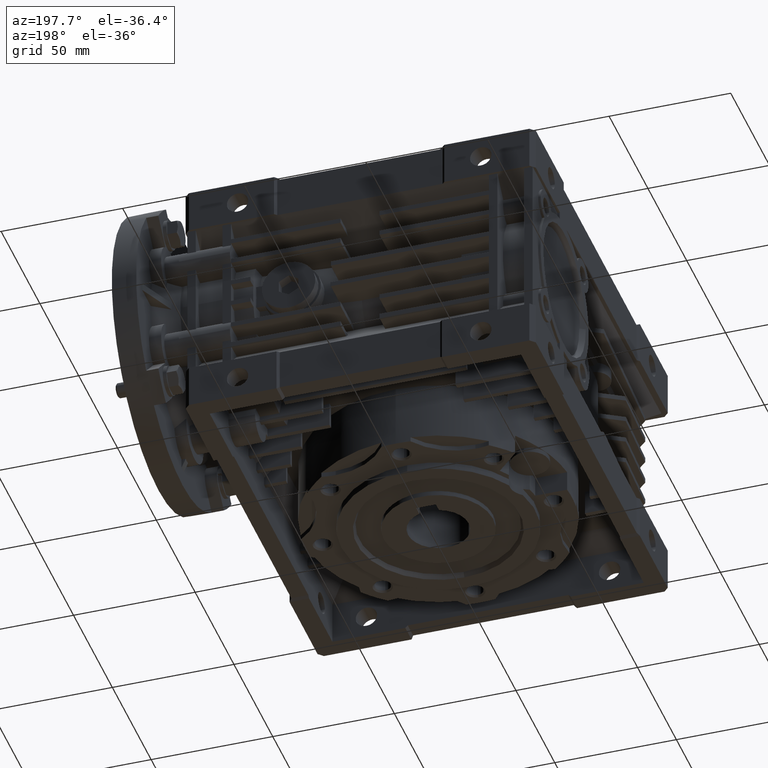
[diagram: clean part render]
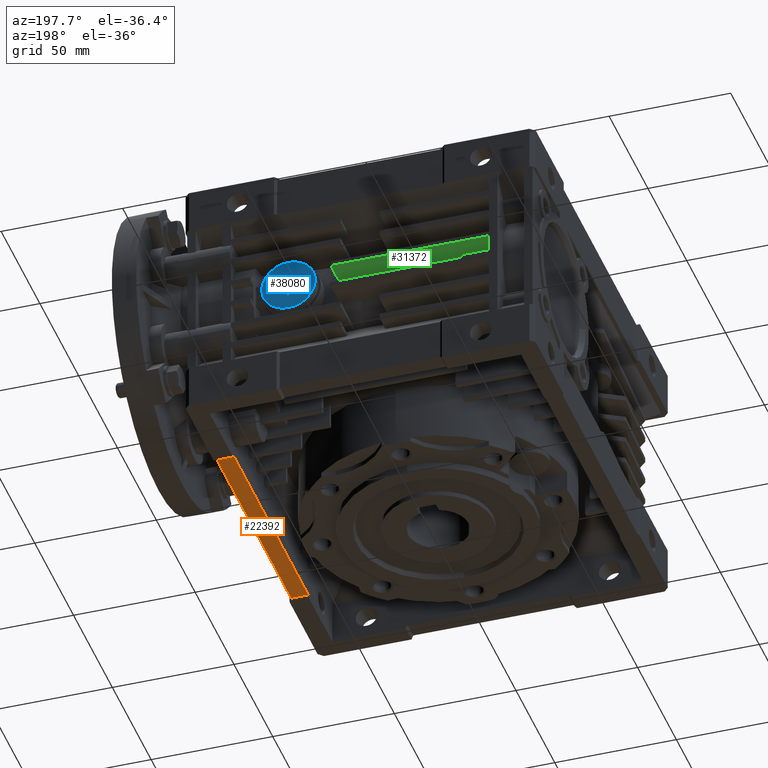
[diagram: same view with three faces highlighted in distinct colors, each labeled with its STEP entity id]
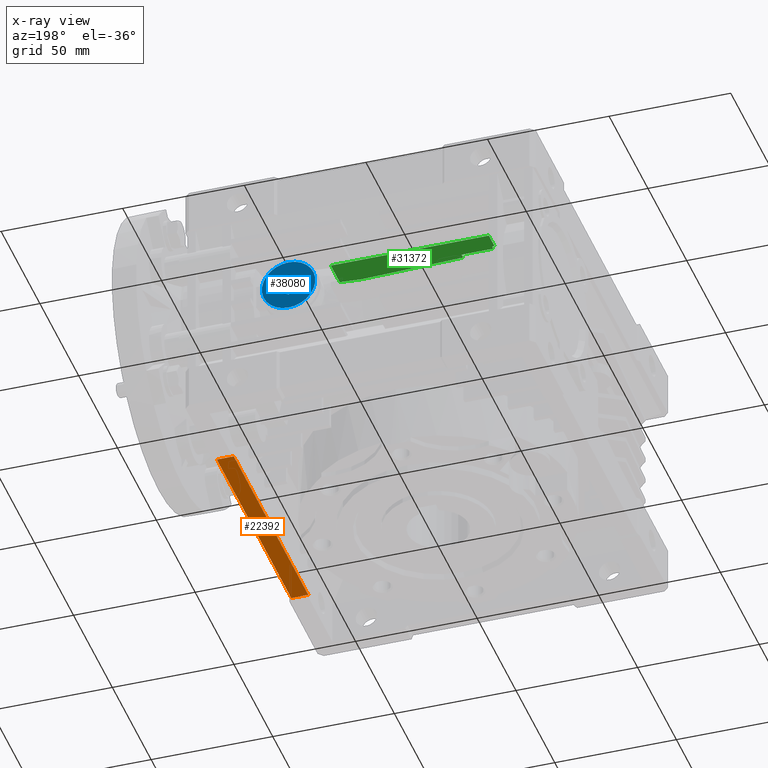
[diagram: x-ray of the same camera — body ghosted, the three highlighted faces saturated]
A machine part, auxiliary view with three faces highlighted in distinct colors.
The next image is the same camera in x-ray (body ghosted, the three faces saturated) — at least one of them is partly hidden behind the body in this view.
Their STEP definitions:

[orange] entity #22392 — the highlighted planar face has unit normal (0, 0, 1).
#1246 = EDGE_CURVE ( 'NONE', #2044, #36918, #38990, .T. ) ;
#2044 = VERTEX_POINT ( 'NONE', #41228 ) ;
#2380 = CARTESIAN_POINT ( 'NONE',  ( 71.00000000000000000, -33.00000000000000000, -50.50000000000000000 ) ) ;
#6775 = CARTESIAN_POINT ( 'NONE',  ( 71.00000000000000000, 63.00000000000000000, -50.50000000000000000 ) ) ;
#10603 = LINE ( 'NONE', #32013, #12199 ) ;
#12199 = VECTOR ( 'NONE', #21213, 1000.000000000000000 ) ;
#13960 = ORIENTED_EDGE ( 'NONE', *, *, #34839, .T. ) ;
#14455 = VERTEX_POINT ( 'NONE', #32254 ) ;
#16693 = PLANE ( 'NONE',  #37870 ) ;
#16847 = CARTESIAN_POINT ( 'NONE',  ( 72.00000000000000000, 63.00000000000000000, -50.50000000000000000 ) ) ;
#18619 = ORIENTED_EDGE ( 'NONE', *, *, #33845, .F. ) ;
#20707 = FACE_OUTER_BOUND ( 'NONE', #26291, .T. ) ;
#21213 = DIRECTION ( 'NONE',  ( 1.000000000000000000, 0.000000000000000000, 0.000000000000000000 ) ) ;
#22392 = ADVANCED_FACE ( 'NONE', ( #20707 ), #16693, .F. ) ;
#22984 = ORIENTED_EDGE ( 'NONE', *, *, #35222, .F. ) ;
#24203 = DIRECTION ( 'NONE',  ( 0.000000000000000000, 0.000000000000000000, 1.000000000000000000 ) ) ;
#25637 = VECTOR ( 'NONE', #31184, 1000.000000000000000 ) ;
#26291 = EDGE_LOOP ( 'NONE', ( #22984, #13960, #18619, #31286 ) ) ;
#31184 = DIRECTION ( 'NONE',  ( -1.000000000000000000, 0.000000000000000000, 0.000000000000000000 ) ) ;
#31286 = ORIENTED_EDGE ( 'NONE', *, *, #1246, .F. ) ;
#31749 = VERTEX_POINT ( 'NONE', #32128 ) ;
#31903 = LINE ( 'NONE', #46212, #33998 ) ;
#32013 = CARTESIAN_POINT ( 'NONE',  ( 72.00000000000000000, -33.00000000000000000, -50.50000000000000000 ) ) ;
#32128 = CARTESIAN_POINT ( 'NONE',  ( 64.00000000000000000, 63.00000000000000000, -50.50000000000000000 ) ) ;
#32254 = CARTESIAN_POINT ( 'NONE',  ( 64.00000000000000000, -33.00000000000000000, -50.50000000000000000 ) ) ;
#32944 = VECTOR ( 'NONE', #34792, 1000.000000000000000 ) ;
#33845 = EDGE_CURVE ( 'NONE', #36918, #31749, #34952, .T. ) ;
#33998 = VECTOR ( 'NONE', #42695, 1000.000000000000000 ) ;
#34792 = DIRECTION ( 'NONE',  ( 0.000000000000000000, 1.000000000000000000, 0.000000000000000000 ) ) ;
#34839 = EDGE_CURVE ( 'NONE', #14455, #31749, #31903, .T. ) ;
#34952 = LINE ( 'NONE', #16847, #25637 ) ;
#35222 = EDGE_CURVE ( 'NONE', #14455, #2044, #10603, .T. ) ;
#36918 = VERTEX_POINT ( 'NONE', #6775 ) ;
#37870 = AXIS2_PLACEMENT_3D ( 'NONE', #45096, #24203, #45571 ) ;
#38990 = LINE ( 'NONE', #2380, #32944 ) ;
#41228 = CARTESIAN_POINT ( 'NONE',  ( 71.00000000000000000, -33.00000000000000000, -50.50000000000000000 ) ) ;
#42695 = DIRECTION ( 'NONE',  ( 0.000000000000000000, 1.000000000000000000, 0.000000000000000000 ) ) ;
#45096 = CARTESIAN_POINT ( 'NONE',  ( 72.00000000000000000, -33.00000000000000000, -50.50000000000000000 ) ) ;
#45571 = DIRECTION ( 'NONE',  ( 1.000000000000000000, 0.000000000000000000, 0.000000000000000000 ) ) ;
#46212 = CARTESIAN_POINT ( 'NONE',  ( 64.00000000000000000, 94.00000000000000000, -50.50000000000000000 ) ) ;

[blue] entity #38080 — the highlighted planar face has unit normal (0, 1, 0).
#1777 = DIRECTION ( 'NONE',  ( 0.000000000000000000, 0.000000000000000000, 1.000000000000000000 ) ) ;
#1897 = VECTOR ( 'NONE', #10793, 999.9999999999998863 ) ;
#2313 = ORIENTED_EDGE ( 'NONE', *, *, #35911, .F. ) ;
#2397 = CARTESIAN_POINT ( 'NONE',  ( 30.00000000000000000, 99.00000000000000000, 0.000000000000000000 ) ) ;
#3307 = DIRECTION ( 'NONE',  ( 0.000000000000000000, 0.000000000000000000, -1.000000000000000000 ) ) ;
#3399 = ORIENTED_EDGE ( 'NONE', *, *, #45079, .F. ) ;
#5671 = FACE_BOUND ( 'NONE', #7949, .T. ) ;
#6004 = VERTEX_POINT ( 'NONE', #38476 ) ;
#6142 = DIRECTION ( 'NONE',  ( 0.000000000000000000, -0.000000000000000000, 1.000000000000000000 ) ) ;
#7208 = ORIENTED_EDGE ( 'NONE', *, *, #19939, .F. ) ;
#7850 = VECTOR ( 'NONE', #11255, 1000.000000000000000 ) ;
#7949 = EDGE_LOOP ( 'NONE', ( #40458, #2313, #7208, #14936, #15144, #3399 ) ) ;
#8024 = CARTESIAN_POINT ( 'NONE',  ( 34.00000000000000000, 99.00000000000000000, 2.309401076758504701 ) ) ;
#9167 = DIRECTION ( 'NONE',  ( 0.000000000000000000, 1.000000000000000000, 0.000000000000000000 ) ) ;
#9527 = CARTESIAN_POINT ( 'NONE',  ( 30.00000000000000000, 99.00000000000000000, -4.618802153517006737 ) ) ;
#9983 = DIRECTION ( 'NONE',  ( -0.8660254037844387076, 0.000000000000000000, 0.4999999999999998890 ) ) ;
#10793 = DIRECTION ( 'NONE',  ( -0.8660254037844387076, 0.000000000000000000, -0.4999999999999999445 ) ) ;
#11255 = DIRECTION ( 'NONE',  ( 0.000000000000000000, 0.000000000000000000, 1.000000000000000000 ) ) ;
#11403 = DIRECTION ( 'NONE',  ( 0.8660254037844385966, 0.000000000000000000, 0.5000000000000001110 ) ) ;
#14261 = AXIS2_PLACEMENT_3D ( 'NONE', #44890, #9167, #23760 ) ;
#14936 = ORIENTED_EDGE ( 'NONE', *, *, #31378, .F. ) ;
#15144 = ORIENTED_EDGE ( 'NONE', *, *, #19927, .F. ) ;
#17780 = ORIENTED_EDGE ( 'NONE', *, *, #19309, .T. ) ;
#19309 = EDGE_CURVE ( 'NONE', #20885, #42233, #44546, .T. ) ;
#19577 = VERTEX_POINT ( 'NONE', #8024 ) ;
#19927 = EDGE_CURVE ( 'NONE', #45533, #42064, #27978, .T. ) ;
#19939 = EDGE_CURVE ( 'NONE', #44779, #20127, #42980, .T. ) ;
#20127 = VERTEX_POINT ( 'NONE', #26526 ) ;
#20885 = VERTEX_POINT ( 'NONE', #35466 ) ;
#21049 = CARTESIAN_POINT ( 'NONE',  ( 34.00000000000000000, 99.00000000000000000, -2.309401076758504701 ) ) ;
#22644 = CARTESIAN_POINT ( 'NONE',  ( 30.00000000000000000, 99.00000000000000000, 0.000000000000000000 ) ) ;
#23709 = ORIENTED_EDGE ( 'NONE', *, *, #41804, .T. ) ;
#23760 = DIRECTION ( 'NONE',  ( 0.000000000000000000, 0.000000000000000000, 1.000000000000000000 ) ) ;
#24317 = AXIS2_PLACEMENT_3D ( 'NONE', #22644, #37697, #1777 ) ;
#25825 = CARTESIAN_POINT ( 'NONE',  ( 25.99999999999999645, 99.00000000000000000, -2.309401076758504701 ) ) ;
#26526 = CARTESIAN_POINT ( 'NONE',  ( 25.99999999999999645, 99.00000000000000000, 2.309401076758501592 ) ) ;
#27033 = CARTESIAN_POINT ( 'NONE',  ( 30.00000000000000000, 99.00000000000000000, 4.618802153517006737 ) ) ;
#27492 = AXIS2_PLACEMENT_3D ( 'NONE', #2397, #27727, #6142 ) ;
#27727 = DIRECTION ( 'NONE',  ( 0.000000000000000000, 1.000000000000000000, 0.000000000000000000 ) ) ;
#27978 = LINE ( 'NONE', #35941, #1897 ) ;
#29250 = VECTOR ( 'NONE', #30331, 1000.000000000000000 ) ;
#30272 = CARTESIAN_POINT ( 'NONE',  ( 30.00000000000000000, 99.00000000000000000, -11.00000000000000000 ) ) ;
#30331 = DIRECTION ( 'NONE',  ( 0.8660254037844388186, 0.000000000000000000, -0.4999999999999997224 ) ) ;
#30806 = PLANE ( 'NONE',  #27492 ) ;
#31378 = EDGE_CURVE ( 'NONE', #42064, #44779, #31829, .T. ) ;
#31829 = LINE ( 'NONE', #9527, #44283 ) ;
#31888 = LINE ( 'NONE', #32119, #40020 ) ;
#32119 = CARTESIAN_POINT ( 'NONE',  ( 25.99999999999999645, 99.00000000000000000, 2.309401076758501592 ) ) ;
#34348 = FACE_OUTER_BOUND ( 'NONE', #38989, .T. ) ;
#34581 = LINE ( 'NONE', #27033, #29250 ) ;
#35466 = CARTESIAN_POINT ( 'NONE',  ( 30.00000000000000000, 99.00000000000000000, 11.00000000000000000 ) ) ;
#35911 = EDGE_CURVE ( 'NONE', #20127, #6004, #31888, .T. ) ;
#35941 = CARTESIAN_POINT ( 'NONE',  ( 34.00000000000000000, 99.00000000000000000, -2.309401076758504701 ) ) ;
#36771 = CIRCLE ( 'NONE', #14261, 11.00000000000000000 ) ;
#36884 = CARTESIAN_POINT ( 'NONE',  ( 25.99999999999999645, 99.00000000000000000, -2.309401076758504701 ) ) ;
#37697 = DIRECTION ( 'NONE',  ( 0.000000000000000000, 1.000000000000000000, 0.000000000000000000 ) ) ;
#38080 = ADVANCED_FACE ( 'NONE', ( #5671, #34348 ), #30806, .T. ) ;
#38305 = LINE ( 'NONE', #42296, #44054 ) ;
#38476 = CARTESIAN_POINT ( 'NONE',  ( 30.00000000000000000, 99.00000000000000000, 4.618802153517006737 ) ) ;
#38989 = EDGE_LOOP ( 'NONE', ( #17780, #23709 ) ) ;
#40020 = VECTOR ( 'NONE', #11403, 1000.000000000000000 ) ;
#40458 = ORIENTED_EDGE ( 'NONE', *, *, #41776, .F. ) ;
#41776 = EDGE_CURVE ( 'NONE', #6004, #19577, #34581, .T. ) ;
#41804 = EDGE_CURVE ( 'NONE', #42233, #20885, #36771, .T. ) ;
#42064 = VERTEX_POINT ( 'NONE', #43649 ) ;
#42233 = VERTEX_POINT ( 'NONE', #30272 ) ;
#42296 = CARTESIAN_POINT ( 'NONE',  ( 34.00000000000000000, 99.00000000000000000, 2.309401076758504701 ) ) ;
#42980 = LINE ( 'NONE', #25825, #7850 ) ;
#43649 = CARTESIAN_POINT ( 'NONE',  ( 30.00000000000000000, 99.00000000000000000, -4.618802153517006737 ) ) ;
#44054 = VECTOR ( 'NONE', #3307, 1000.000000000000000 ) ;
#44283 = VECTOR ( 'NONE', #9983, 1000.000000000000000 ) ;
#44546 = CIRCLE ( 'NONE', #24317, 11.00000000000000000 ) ;
#44779 = VERTEX_POINT ( 'NONE', #36884 ) ;
#44890 = CARTESIAN_POINT ( 'NONE',  ( 30.00000000000000000, 99.00000000000000000, 0.000000000000000000 ) ) ;
#45079 = EDGE_CURVE ( 'NONE', #19577, #45533, #38305, .T. ) ;
#45533 = VERTEX_POINT ( 'NONE', #21049 ) ;

[green] entity #31372 — the highlighted planar face has unit normal (0, 0, 1).
#260 = CARTESIAN_POINT ( 'NONE',  ( -52.00000000000000000, 92.22755549135098363, 4.000000000000000000 ) ) ;
#431 = CARTESIAN_POINT ( 'NONE',  ( -53.00000000000000000, 101.0000000000000000, 4.000000000000000000 ) ) ;
#625 = EDGE_CURVE ( 'NONE', #17230, #4266, #6369, .T. ) ;
#940 = LINE ( 'NONE', #8411, #26054 ) ;
#1386 = CARTESIAN_POINT ( 'NONE',  ( 12.00000000000000000, 89.45004966921919731, 4.000000000000000000 ) ) ;
#2716 = CARTESIAN_POINT ( 'NONE',  ( -10.83332134738260066, 89.19648904037140369, 4.000000000000000000 ) ) ;
#3339 = CARTESIAN_POINT ( 'NONE',  ( -53.00000000000000000, 93.74085229787880280, 4.000000000000000000 ) ) ;
#3826 = EDGE_LOOP ( 'NONE', ( #45473, #32040, #14439, #19900, #21061, #6985, #30502, #44971, #37906 ) ) ;
#4266 = VERTEX_POINT ( 'NONE', #431 ) ;
#4616 = B_SPLINE_CURVE_WITH_KNOTS ( 'NONE', 3,
 ( #22729, #14746, #37054, #1386 ),
 .UNSPECIFIED., .F., .F.,
 ( 4, 4 ),
 ( 6.331740687315349592E-17, 0.008782907754878480425 ),
 .UNSPECIFIED. ) ;
#4649 = VECTOR ( 'NONE', #32720, 1000.000000000000000 ) ;
#5030 = CARTESIAN_POINT ( 'NONE',  ( 0.000000000000000000, 101.0000000000000000, 4.000000000000000000 ) ) ;
#5748 = EDGE_CURVE ( 'NONE', #22976, #30632, #4616, .T. ) ;
#6369 = LINE ( 'NONE', #45574, #45629 ) ;
#6601 = DIRECTION ( 'NONE',  ( 0.000000000000000000, 1.000000000000000000, 0.000000000000000000 ) ) ;
#6928 = PLANE ( 'NONE',  #18044 ) ;
#6985 = ORIENTED_EDGE ( 'NONE', *, *, #16782, .F. ) ;
#7389 = VERTEX_POINT ( 'NONE', #8973 ) ;
#7491 = EDGE_CURVE ( 'NONE', #17230, #43637, #21631, .T. ) ;
#8410 = CARTESIAN_POINT ( 'NONE',  ( -39.00000000000000000, 90.20753572082560368, 4.000000000000000000 ) ) ;
#8411 = CARTESIAN_POINT ( 'NONE',  ( -53.00000000000000000, 92.22755549135098363, 4.000000000000000000 ) ) ;
#8973 = CARTESIAN_POINT ( 'NONE',  ( -39.00000000000000000, 92.22755549135098363, 4.000000000000000000 ) ) ;
#9663 = CARTESIAN_POINT ( 'NONE',  ( 3.249999999999910294, 88.69046515733029423, 4.000000000000000000 ) ) ;
#11134 = VERTEX_POINT ( 'NONE', #260 ) ;
#11672 = VECTOR ( 'NONE', #31983, 1000.000000000000000 ) ;
#11940 = CARTESIAN_POINT ( 'NONE',  ( -52.00000000000000000, 39.31192283025060163, 4.000000000000000000 ) ) ;
#12033 = DIRECTION ( 'NONE',  ( -1.000000000000000000, 0.000000000000000000, 0.000000000000000000 ) ) ;
#12425 = LINE ( 'NONE', #11940, #32462 ) ;
#14439 = ORIENTED_EDGE ( 'NONE', *, *, #34882, .F. ) ;
#14746 = CARTESIAN_POINT ( 'NONE',  ( 6.166659246380239878, 88.94374545775258412, 4.000000000000000000 ) ) ;
#16782 = EDGE_CURVE ( 'NONE', #35820, #22976, #21742, .T. ) ;
#16961 = EDGE_CURVE ( 'NONE', #30632, #39318, #43278, .T. ) ;
#16997 = VECTOR ( 'NONE', #18649, 1000.000000000000000 ) ;
#17230 = VERTEX_POINT ( 'NONE', #43906 ) ;
#18044 = AXIS2_PLACEMENT_3D ( 'NONE', #20834, #32060, #28068 ) ;
#18391 = CARTESIAN_POINT ( 'NONE',  ( 12.00000000000000000, 51.00000000000000000, 4.000000000000000000 ) ) ;
#18426 = CARTESIAN_POINT ( 'NONE',  ( -39.00000000000000000, 51.00000000000000000, 4.000000000000000000 ) ) ;
#18649 = DIRECTION ( 'NONE',  ( 0.000000000000000000, -1.000000000000000000, 0.000000000000000000 ) ) ;
#19246 = DIRECTION ( 'NONE',  ( 1.000000000000000000, 0.000000000000000000, 0.000000000000000000 ) ) ;
#19727 = VECTOR ( 'NONE', #12033, 1000.000000000000000 ) ;
#19900 = ORIENTED_EDGE ( 'NONE', *, *, #16961, .F. ) ;
#20560 = CARTESIAN_POINT ( 'NONE',  ( -24.91665535628195016, 89.70216062240540111, 4.000000000000000000 ) ) ;
#20802 = CARTESIAN_POINT ( 'NONE',  ( -39.00000000000000000, 90.20753572082560368, 4.000000000000000000 ) ) ;
#20834 = CARTESIAN_POINT ( 'NONE',  ( -53.00000000000000000, 51.00000000000000000, 4.000000000000000000 ) ) ;
#21061 = ORIENTED_EDGE ( 'NONE', *, *, #5748, .F. ) ;
#21631 = LINE ( 'NONE', #3339, #11672 ) ;
#21742 = B_SPLINE_CURVE_WITH_KNOTS ( 'NONE', 3,
 ( #20802, #20560, #2716, #38862 ),
 .UNSPECIFIED., .F., .F.,
 ( 4, 4 ),
 ( 6.938893903907229918E-18, 0.04227722794950750096 ),
 .UNSPECIFIED. ) ;
#22729 = CARTESIAN_POINT ( 'NONE',  ( 3.249999999999910294, 88.69046515733029423, 4.000000000000000000 ) ) ;
#22976 = VERTEX_POINT ( 'NONE', #9663 ) ;
#26054 = VECTOR ( 'NONE', #19246, 1000.000000000000000 ) ;
#28068 = DIRECTION ( 'NONE',  ( 1.000000000000000000, 0.000000000000000000, 0.000000000000000000 ) ) ;
#29044 = LINE ( 'NONE', #5030, #19727 ) ;
#30174 = EDGE_CURVE ( 'NONE', #11134, #43637, #12425, .T. ) ;
#30258 = CARTESIAN_POINT ( 'NONE',  ( -52.00000000000000000, 93.74085229787880280, 4.000000000000000000 ) ) ;
#30502 = ORIENTED_EDGE ( 'NONE', *, *, #45573, .F. ) ;
#30632 = VERTEX_POINT ( 'NONE', #40912 ) ;
#31154 = FACE_OUTER_BOUND ( 'NONE', #3826, .T. ) ;
#31372 = ADVANCED_FACE ( 'NONE', ( #31154 ), #6928, .F. ) ;
#31983 = DIRECTION ( 'NONE',  ( 1.000000000000000000, 0.000000000000000000, 0.000000000000000000 ) ) ;
#32040 = ORIENTED_EDGE ( 'NONE', *, *, #625, .T. ) ;
#32060 = DIRECTION ( 'NONE',  ( 0.000000000000000000, 0.000000000000000000, 1.000000000000000000 ) ) ;
#32462 = VECTOR ( 'NONE', #40874, 1000.000000000000000 ) ;
#32720 = DIRECTION ( 'NONE',  ( 0.000000000000000000, 1.000000000000000000, 0.000000000000000000 ) ) ;
#34882 = EDGE_CURVE ( 'NONE', #39318, #4266, #29044, .T. ) ;
#35820 = VERTEX_POINT ( 'NONE', #8410 ) ;
#37054 = CARTESIAN_POINT ( 'NONE',  ( 9.083326128501740371, 89.19693784136910608, 4.000000000000000000 ) ) ;
#37906 = ORIENTED_EDGE ( 'NONE', *, *, #30174, .T. ) ;
#38563 = CARTESIAN_POINT ( 'NONE',  ( 12.00000000000000000, 101.0000000000000000, 4.000000000000000000 ) ) ;
#38862 = CARTESIAN_POINT ( 'NONE',  ( 3.249999999999910294, 88.69046515733029423, 4.000000000000000000 ) ) ;
#39318 = VERTEX_POINT ( 'NONE', #38563 ) ;
#40550 = EDGE_CURVE ( 'NONE', #11134, #7389, #940, .T. ) ;
#40874 = DIRECTION ( 'NONE',  ( 0.000000000000000000, 1.000000000000000000, 0.000000000000000000 ) ) ;
#40912 = CARTESIAN_POINT ( 'NONE',  ( 12.00000000000000000, 89.45004966921919731, 4.000000000000000000 ) ) ;
#40956 = LINE ( 'NONE', #18426, #16997 ) ;
#43278 = LINE ( 'NONE', #18391, #4649 ) ;
#43637 = VERTEX_POINT ( 'NONE', #30258 ) ;
#43906 = CARTESIAN_POINT ( 'NONE',  ( -53.00000000000000000, 93.74085229787880280, 4.000000000000000000 ) ) ;
#44971 = ORIENTED_EDGE ( 'NONE', *, *, #40550, .F. ) ;
#45473 = ORIENTED_EDGE ( 'NONE', *, *, #7491, .F. ) ;
#45573 = EDGE_CURVE ( 'NONE', #7389, #35820, #40956, .T. ) ;
#45574 = CARTESIAN_POINT ( 'NONE',  ( -53.00000000000000000, 51.00000000000000000, 4.000000000000000000 ) ) ;
#45629 = VECTOR ( 'NONE', #6601, 1000.000000000000000 ) ;